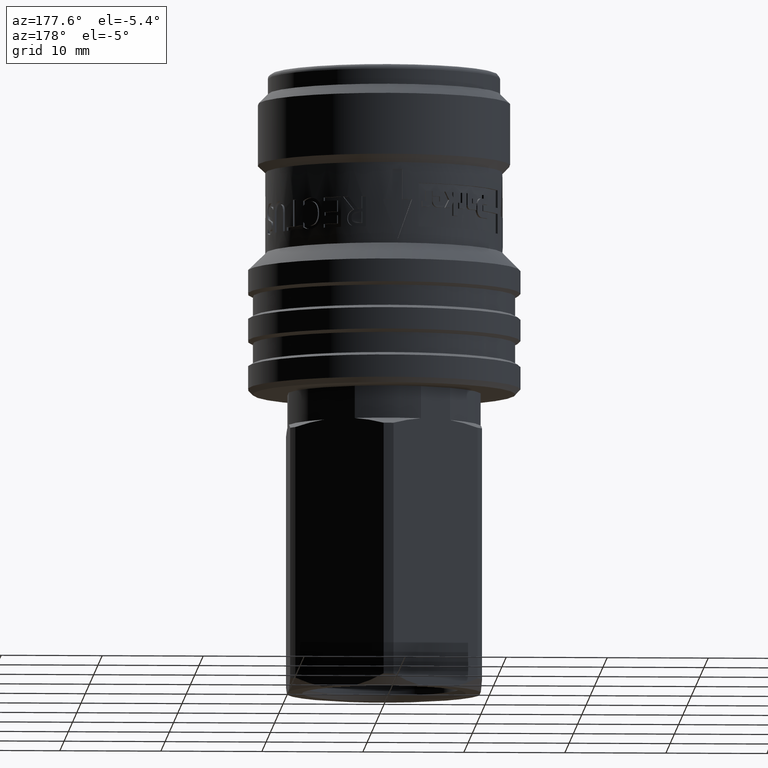
[diagram: clean part render]
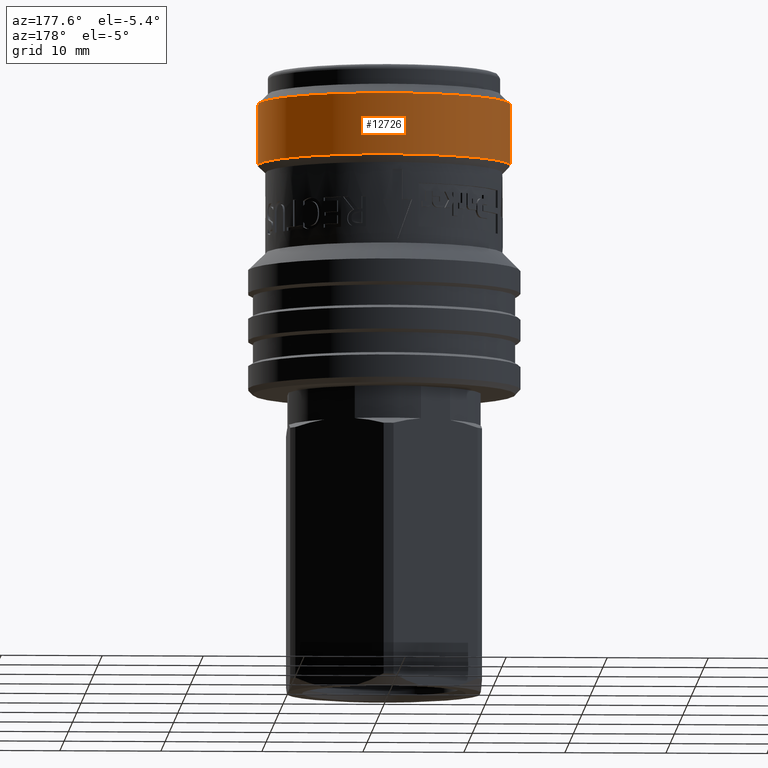
[diagram: same view with one face highlighted and labeled with its STEP entity id]
A machine part, auxiliary view. The second image highlights one B-rep face of the part: STEP entity #12726.
In plain terms, the highlighted cylindrical surface (bore or boss wall) has radius 12.5 mm, axis along (0, 0, 1).
Its self-contained STEP definition (entity closure, byte-faithful):
#1146=FACE_BOUND($,#4212,.T.);
#1253=CYLINDRICAL_SURFACE($,#13338,12.5);
#3476=FACE_OUTER_BOUND($,#4211,.T.);
#4211=EDGE_LOOP($,(#11049));
#4212=EDGE_LOOP($,(#11050));
#4456=CIRCLE($,#13337,12.5);
#4457=CIRCLE($,#13339,12.5);
#5667=VERTEX_POINT($,#88725);
#5668=VERTEX_POINT($,#88728);
#7472=EDGE_CURVE($,#5667,#5667,#4456,.T.);
#7473=EDGE_CURVE($,#5668,#5668,#4457,.T.);
#11049=ORIENTED_EDGE($,*,*,#7472,.T.);
#11050=ORIENTED_EDGE($,*,*,#7473,.F.);
#12726=ADVANCED_FACE($,(#3476,#1146),#1253,.T.);
#13337=AXIS2_PLACEMENT_3D($,#88726,#15326,#15327);
#13338=AXIS2_PLACEMENT_3D($,#88727,#15328,#15329);
#13339=AXIS2_PLACEMENT_3D($,#88729,#15330,#15331);
#15326=DIRECTION('center_axis',(0.,0.,1.));
#15327=DIRECTION('ref_axis',(-1.,0.,0.));
#15328=DIRECTION('center_axis',(0.,0.,1.));
#15329=DIRECTION('ref_axis',(0.,-1.,0.));
#15330=DIRECTION('center_axis',(0.,0.,1.));
#15331=DIRECTION('ref_axis',(-1.,0.,0.));
#88725=CARTESIAN_POINT('',(0.,-12.5,8.70000000000002));
#88726=CARTESIAN_POINT('Origin',(0.,0.,8.70000000000002));
#88727=CARTESIAN_POINT('Origin',(0.,0.,11.725));
#88728=CARTESIAN_POINT('',(0.,-12.5,14.75));
#88729=CARTESIAN_POINT('Origin',(0.,0.,14.75));